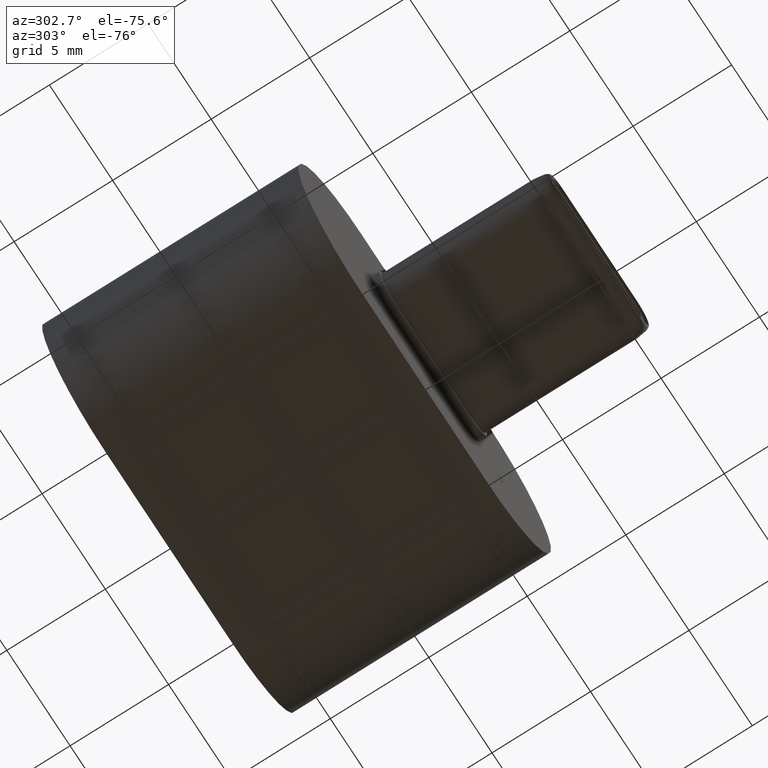
[diagram: clean part render]
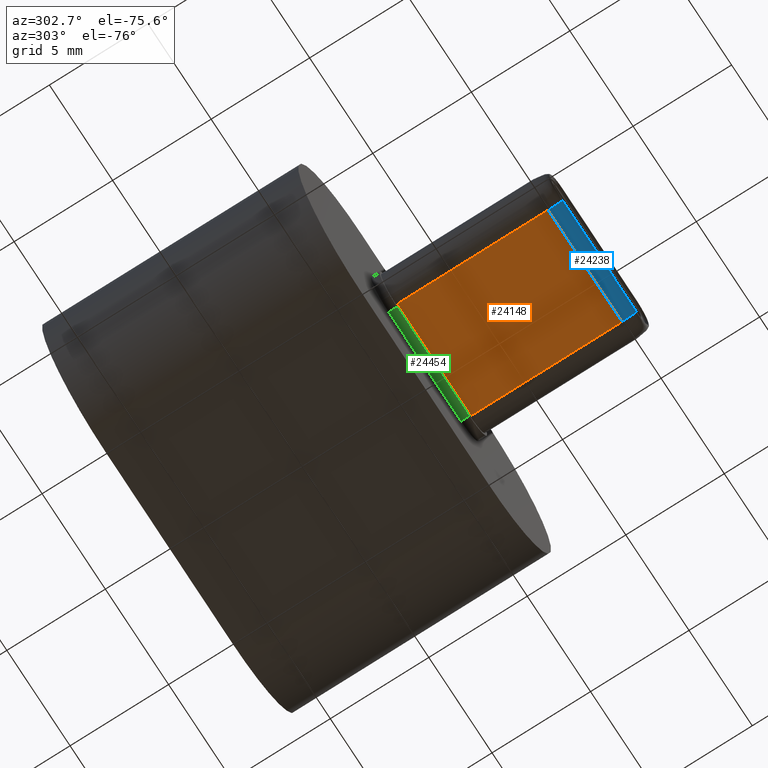
[diagram: same view with three faces highlighted in distinct colors, each labeled with its STEP entity id]
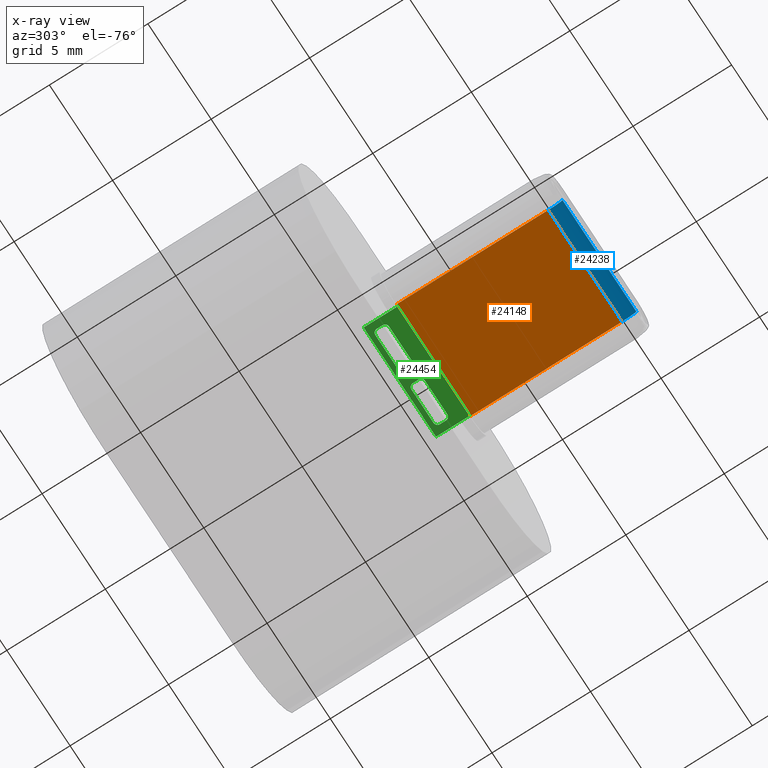
[diagram: x-ray of the same camera — body ghosted, the three highlighted faces saturated]
A machine part, auxiliary view with three faces highlighted in distinct colors.
The next image is the same camera in x-ray (body ghosted, the three faces saturated) — at least one of them is partly hidden behind the body in this view.
Their STEP definitions:

[orange] entity #24148 — the highlighted planar face has unit normal (0, 0, -1).
#424=B_SPLINE_CURVE_WITH_KNOTS('',3,(#38372,#38373,#38374,#38375,#38376,
#38377),.UNSPECIFIED.,.F.,.F.,(4,2,4),(-0.0257628086124828,-0.0128848740764553,
-2.65713586727795E-5),.UNSPECIFIED.);
#425=B_SPLINE_CURVE_WITH_KNOTS('',3,(#38379,#38380,#38381,#38382,#38383,
#38384),.UNSPECIFIED.,.F.,.F.,(4,2,4),(0.,0.5,1.),.UNSPECIFIED.);
#426=B_SPLINE_CURVE_WITH_KNOTS('',3,(#38389,#38390,#38391,#38392,#38393,
#38394),.UNSPECIFIED.,.F.,.F.,(4,2,4),(-0.025694780338251,-0.012799972147845,
0.),.UNSPECIFIED.);
#2566=FACE_OUTER_BOUND('',#4000,.T.);
#4000=EDGE_LOOP('',(#19248,#19249,#19250,#19251,#19252,#19253,#19254,#19255));
#6207=LINE('',#38251,#8772);
#6214=LINE('',#38305,#8779);
#6219=LINE('',#38386,#8784);
#6220=LINE('',#38387,#8785);
#6221=LINE('',#38395,#8786);
#8772=VECTOR('',#29345,1000.);
#8779=VECTOR('',#29354,1000.);
#8784=VECTOR('',#29375,10.);
#8785=VECTOR('',#29376,10.);
#8786=VECTOR('',#29377,10.);
#11096=VERTEX_POINT('',#38239);
#11097=VERTEX_POINT('',#38250);
#11102=VERTEX_POINT('',#38297);
#11103=VERTEX_POINT('',#38304);
#11111=VERTEX_POINT('',#38371);
#11112=VERTEX_POINT('',#38378);
#11113=VERTEX_POINT('',#38385);
#11114=VERTEX_POINT('',#38388);
#13969=EDGE_CURVE('',#11097,#11096,#6207,.T.);
#13980=EDGE_CURVE('',#11102,#11103,#6214,.T.);
#13992=EDGE_CURVE('',#11111,#11097,#424,.T.);
#13993=EDGE_CURVE('',#11096,#11112,#425,.T.);
#13994=EDGE_CURVE('',#11112,#11113,#6219,.T.);
#13995=EDGE_CURVE('',#11113,#11103,#6220,.T.);
#13996=EDGE_CURVE('',#11102,#11114,#426,.T.);
#13997=EDGE_CURVE('',#11114,#11111,#6221,.T.);
#19248=ORIENTED_EDGE('',*,*,#13992,.T.);
#19249=ORIENTED_EDGE('',*,*,#13969,.T.);
#19250=ORIENTED_EDGE('',*,*,#13993,.T.);
#19251=ORIENTED_EDGE('',*,*,#13994,.T.);
#19252=ORIENTED_EDGE('',*,*,#13995,.T.);
#19253=ORIENTED_EDGE('',*,*,#13980,.F.);
#19254=ORIENTED_EDGE('',*,*,#13996,.T.);
#19255=ORIENTED_EDGE('',*,*,#13997,.T.);
#22990=PLANE('',#25630);
#24148=ADVANCED_FACE('',(#2566),#22990,.T.);
#25630=AXIS2_PLACEMENT_3D('',#38370,#29373,#29374);
#29345=DIRECTION('',(0.,0.,1.));
#29354=DIRECTION('',(0.,0.,1.));
#29373=DIRECTION('center_axis',(0.,-1.,0.));
#29374=DIRECTION('ref_axis',(0.,0.,-1.));
#29375=DIRECTION('',(-1.,0.,0.));
#29376=DIRECTION('',(-0.999999999844584,0.,-1.7630420503422E-5));
#29377=DIRECTION('',(1.,2.76126395988818E-15,0.));
#38239=CARTESIAN_POINT('',(2.925000000197,-1.2,-0.729956581954962));
#38250=CARTESIAN_POINT('',(2.925000000197,-1.19999999999989,-8.4092300892786));
#38251=CARTESIAN_POINT('',(2.925000000197,-1.2,-7.7));
#38297=CARTESIAN_POINT('',(-2.924999999884,-1.20000000000012,-8.40928024325465));
#38304=CARTESIAN_POINT('',(-2.924999999884,-1.20000000000004,-0.729982964663591));
#38305=CARTESIAN_POINT('',(-2.924999999884,-1.20000000000004,-7.7));
#38370=CARTESIAN_POINT('Origin',(-2.924999999884,-1.2,-7.7));
#38371=CARTESIAN_POINT('',(2.66999999999558,-1.19999999996928,-8.37268976699491));
#38372=CARTESIAN_POINT('Ctrl Pts',(2.66999999999558,-1.2,-8.37268976711375));
#38373=CARTESIAN_POINT('Ctrl Pts',(2.7128638365433,-1.2,-8.37268976711375));
#38374=CARTESIAN_POINT('Ctrl Pts',(2.75650874846746,-1.2000000008539,-8.37565628341577));
#38375=CARTESIAN_POINT('Ctrl Pts',(2.84137683094925,-1.2000000008539,-8.38745393399239));
#38376=CARTESIAN_POINT('Ctrl Pts',(2.8840768170524,-1.2,-8.39647987071203));
#38377=CARTESIAN_POINT('Ctrl Pts',(2.92500000019677,-1.2,-8.40923008927932));
#38378=CARTESIAN_POINT('',(2.92000000000163,-1.2,-0.729982876511488));
#38379=CARTESIAN_POINT('Ctrl Pts',(2.925000000197,-1.19999999985342,-0.729956581954964));
#38380=CARTESIAN_POINT('Ctrl Pts',(2.92416666683109,-1.20000000000017,-0.729969758617265));
#38381=CARTESIAN_POINT('Ctrl Pts',(2.92333333346525,-1.19999999999317,-0.729976339602394));
#38382=CARTESIAN_POINT('Ctrl Pts',(2.92166666673371,-1.20000000000227,-0.729982883879319));
#38383=CARTESIAN_POINT('Ctrl Pts',(2.9208333333675,-1.2,-0.729982876514928));
#38384=CARTESIAN_POINT('Ctrl Pts',(2.92000000000163,-1.2,-0.729982876511488));
#38385=CARTESIAN_POINT('',(-2.92,-1.2,-0.729982876511488));
#38386=CARTESIAN_POINT('',(2.92000000000163,-1.2,-0.729982876511488));
#38387=CARTESIAN_POINT('',(-2.92,-1.2,-0.729982876511488));
#38388=CARTESIAN_POINT('',(-2.6700000000466,-1.19999999996928,-8.37268976700303));
#38389=CARTESIAN_POINT('Ctrl Pts',(-2.92499999988392,-1.2,-8.40928024325491));
#38390=CARTESIAN_POINT('Ctrl Pts',(-2.88389630976275,-1.2,-8.3964721218059));
#38391=CARTESIAN_POINT('Ctrl Pts',(-2.84098857260531,-1.20000000068591,
-8.38741178097191));
#38392=CARTESIAN_POINT('Ctrl Pts',(-2.75612531985664,-1.20000000068591,
-8.37564699686892));
#38393=CARTESIAN_POINT('Ctrl Pts',(-2.71266657387275,-1.2,-8.37268976712006));
#38394=CARTESIAN_POINT('Ctrl Pts',(-2.6700000000466,-1.2,-8.37268976711799));
#38395=CARTESIAN_POINT('',(-2.924999999884,-1.2,-8.37268976711799));

[blue] entity #24238 — the highlighted face is a freeform B-spline surface patch.
#35=(
BOUNDED_SURFACE()
B_SPLINE_SURFACE(2,1,((#39300,#39301),(#39302,#39303),(#39304,#39305)),
 .UNSPECIFIED.,.F.,.F.,.F.)
B_SPLINE_SURFACE_WITH_KNOTS((3,3),(2,2),(0.,1.),(0.,0.840960000000235),
 .UNSPECIFIED.)
GEOMETRIC_REPRESENTATION_ITEM()
RATIONAL_B_SPLINE_SURFACE(((1.,1.),(0.709524247320133,0.709524247320133),
(1.,1.)))
REPRESENTATION_ITEM('')
SURFACE()
);
#96=ELLIPSE('',#25754,0.733457360308849,0.226548918115813);
#98=ELLIPSE('',#25756,0.733457360308909,0.226548918115827);
#2656=FACE_OUTER_BOUND('',#4099,.T.);
#4099=EDGE_LOOP('',(#19720,#19721,#19722,#19723));
#6219=LINE('',#38386,#8784);
#6390=LINE('',#38910,#8955);
#8784=VECTOR('',#29375,10.);
#8955=VECTOR('',#29776,10.);
#11112=VERTEX_POINT('',#38378);
#11113=VERTEX_POINT('',#38385);
#11118=VERTEX_POINT('',#38461);
#11245=VERTEX_POINT('',#38889);
#13994=EDGE_CURVE('',#11112,#11113,#6219,.T.);
#14209=EDGE_CURVE('',#11118,#11245,#6390,.T.);
#14218=EDGE_CURVE('',#11112,#11118,#96,.T.);
#14220=EDGE_CURVE('',#11113,#11245,#98,.T.);
#19720=ORIENTED_EDGE('',*,*,#14218,.T.);
#19721=ORIENTED_EDGE('',*,*,#14209,.T.);
#19722=ORIENTED_EDGE('',*,*,#14220,.F.);
#19723=ORIENTED_EDGE('',*,*,#13994,.F.);
#24238=ADVANCED_FACE('',(#2656),#35,.T.);
#25754=AXIS2_PLACEMENT_3D('',#39214,#29794,#29795);
#25756=AXIS2_PLACEMENT_3D('',#39306,#29798,#29799);
#29375=DIRECTION('',(-1.,0.,0.));
#29776=DIRECTION('',(-1.,-5.22793376321632E-16,0.));
#29794=DIRECTION('center_axis',(-1.,3.17638405254118E-15,2.82317738683713E-15));
#29795=DIRECTION('ref_axis',(-2.81803948424609E-15,0.00161637085120252,
-0.999998693671782));
#29798=DIRECTION('center_axis',(-1.,5.95694494814935E-15,-1.83608774459272E-15));
#29799=DIRECTION('ref_axis',(1.84571397823603E-15,0.00161637085122537,-0.999998693671782));
#38378=CARTESIAN_POINT('',(2.92000000000163,-1.2,-0.729982876511488));
#38385=CARTESIAN_POINT('',(-2.92,-1.2,-0.729982876511488));
#38386=CARTESIAN_POINT('',(2.92000000000163,-1.2,-0.729982876511488));
#38461=CARTESIAN_POINT('',(2.92000000000163,-0.975000000001394,0.));
#38889=CARTESIAN_POINT('',(-2.92,-0.975000000001397,0.));
#38910=CARTESIAN_POINT('',(2.92000000000163,-0.975000000001394,0.));
#39214=CARTESIAN_POINT('Origin',(2.92000000000163,-0.97344827586304,-0.733454852143906));
#39300=CARTESIAN_POINT('Ctrl Pts',(2.92000000000163,-1.2,-0.729982876511488));
#39301=CARTESIAN_POINT('Ctrl Pts',(-5.48960000000072,-1.2,-0.729982876511488));
#39302=CARTESIAN_POINT('Ctrl Pts',(2.92000000000163,-1.2,-0.001541132040909));
#39303=CARTESIAN_POINT('Ctrl Pts',(-5.48960000000072,-1.2,-0.001541132040909));
#39304=CARTESIAN_POINT('Ctrl Pts',(2.92000000000163,-0.975000000001394,
1.0842021724855E-16));
#39305=CARTESIAN_POINT('Ctrl Pts',(-5.48960000000072,-0.975000000001394,
1.0842021724855E-16));
#39306=CARTESIAN_POINT('Origin',(-2.92,-0.973448275863026,-0.733454852143966));

[green] entity #24454 — the highlighted planar face has unit normal (-0, 0, -1).
#1495=FACE_BOUND('',#4317,.T.);
#1496=FACE_BOUND('',#4318,.T.);
#1655=CIRCLE('',#25983,0.199999999999999);
#1657=CIRCLE('',#25987,0.199999999999999);
#1659=CIRCLE('',#25991,0.199999999999998);
#1661=CIRCLE('',#25995,0.199999999999999);
#1663=CIRCLE('',#26001,0.199999999999999);
#1665=CIRCLE('',#26005,0.199999999999999);
#1667=CIRCLE('',#26009,0.199999999999999);
#1669=CIRCLE('',#26013,0.199999999999998);
#2872=FACE_OUTER_BOUND('',#4316,.T.);
#4316=EDGE_LOOP('',(#20654,#20655,#20656,#20657));
#4317=EDGE_LOOP('',(#20658,#20659,#20660,#20661,#20662,#20663,#20664,#20665));
#4318=EDGE_LOOP('',(#20666,#20667,#20668,#20669,#20670,#20671,#20672,#20673));
#6691=LINE('',#40074,#9256);
#6695=LINE('',#40086,#9260);
#6699=LINE('',#40098,#9264);
#6703=LINE('',#40109,#9268);
#6705=LINE('',#40115,#9270);
#6710=LINE('',#40129,#9275);
#6714=LINE('',#40141,#9279);
#6718=LINE('',#40153,#9283);
#6753=LINE('',#40272,#9318);
#6754=LINE('',#40275,#9319);
#6755=LINE('',#40277,#9320);
#6756=LINE('',#40278,#9321);
#9256=VECTOR('',#30557,10.);
#9260=VECTOR('',#30569,10.);
#9264=VECTOR('',#30581,10.);
#9268=VECTOR('',#30593,10.);
#9270=VECTOR('',#30599,10.);
#9275=VECTOR('',#30612,10.);
#9279=VECTOR('',#30624,10.);
#9283=VECTOR('',#30636,10.);
#9318=VECTOR('',#30761,10.);
#9319=VECTOR('',#30764,10.);
#9320=VECTOR('',#30765,10.);
#9321=VECTOR('',#30766,10.);
#11468=VERTEX_POINT('',#40064);
#11469=VERTEX_POINT('',#40065);
#11472=VERTEX_POINT('',#40073);
#11474=VERTEX_POINT('',#40079);
#11476=VERTEX_POINT('',#40085);
#11478=VERTEX_POINT('',#40091);
#11480=VERTEX_POINT('',#40097);
#11482=VERTEX_POINT('',#40103);
#11484=VERTEX_POINT('',#40113);
#11485=VERTEX_POINT('',#40114);
#11488=VERTEX_POINT('',#40122);
#11490=VERTEX_POINT('',#40128);
#11492=VERTEX_POINT('',#40134);
#11494=VERTEX_POINT('',#40140);
#11496=VERTEX_POINT('',#40146);
#11498=VERTEX_POINT('',#40152);
#11536=VERTEX_POINT('',#40268);
#11537=VERTEX_POINT('',#40270);
#11538=VERTEX_POINT('',#40274);
#11539=VERTEX_POINT('',#40276);
#14566=EDGE_CURVE('',#11468,#11469,#1655,.T.);
#14570=EDGE_CURVE('',#11472,#11468,#6691,.T.);
#14573=EDGE_CURVE('',#11474,#11472,#1657,.T.);
#14576=EDGE_CURVE('',#11476,#11474,#6695,.T.);
#14579=EDGE_CURVE('',#11478,#11476,#1659,.T.);
#14582=EDGE_CURVE('',#11480,#11478,#6699,.T.);
#14585=EDGE_CURVE('',#11482,#11480,#1661,.T.);
#14588=EDGE_CURVE('',#11469,#11482,#6703,.T.);
#14590=EDGE_CURVE('',#11484,#11485,#6705,.T.);
#14594=EDGE_CURVE('',#11488,#11484,#1663,.T.);
#14597=EDGE_CURVE('',#11490,#11488,#6710,.T.);
#14600=EDGE_CURVE('',#11492,#11490,#1665,.T.);
#14603=EDGE_CURVE('',#11494,#11492,#6714,.T.);
#14606=EDGE_CURVE('',#11496,#11494,#1667,.T.);
#14609=EDGE_CURVE('',#11498,#11496,#6718,.T.);
#14612=EDGE_CURVE('',#11485,#11498,#1669,.T.);
#14668=EDGE_CURVE('',#11536,#11537,#6753,.T.);
#14669=EDGE_CURVE('',#11538,#11536,#6754,.T.);
#14670=EDGE_CURVE('',#11539,#11537,#6755,.T.);
#14671=EDGE_CURVE('',#11538,#11539,#6756,.T.);
#20654=ORIENTED_EDGE('',*,*,#14669,.T.);
#20655=ORIENTED_EDGE('',*,*,#14668,.T.);
#20656=ORIENTED_EDGE('',*,*,#14670,.F.);
#20657=ORIENTED_EDGE('',*,*,#14671,.F.);
#20658=ORIENTED_EDGE('',*,*,#14566,.T.);
#20659=ORIENTED_EDGE('',*,*,#14588,.T.);
#20660=ORIENTED_EDGE('',*,*,#14585,.T.);
#20661=ORIENTED_EDGE('',*,*,#14582,.T.);
#20662=ORIENTED_EDGE('',*,*,#14579,.T.);
#20663=ORIENTED_EDGE('',*,*,#14576,.T.);
#20664=ORIENTED_EDGE('',*,*,#14573,.T.);
#20665=ORIENTED_EDGE('',*,*,#14570,.T.);
#20666=ORIENTED_EDGE('',*,*,#14590,.T.);
#20667=ORIENTED_EDGE('',*,*,#14612,.T.);
#20668=ORIENTED_EDGE('',*,*,#14609,.T.);
#20669=ORIENTED_EDGE('',*,*,#14606,.T.);
#20670=ORIENTED_EDGE('',*,*,#14603,.T.);
#20671=ORIENTED_EDGE('',*,*,#14600,.T.);
#20672=ORIENTED_EDGE('',*,*,#14597,.T.);
#20673=ORIENTED_EDGE('',*,*,#14594,.T.);
#23219=PLANE('',#26057);
#24454=ADVANCED_FACE('',(#2872,#1495,#1496),#23219,.T.);
#25983=AXIS2_PLACEMENT_3D('',#40066,#30549,#30550);
#25987=AXIS2_PLACEMENT_3D('',#40080,#30562,#30563);
#25991=AXIS2_PLACEMENT_3D('',#40092,#30574,#30575);
#25995=AXIS2_PLACEMENT_3D('',#40104,#30586,#30587);
#26001=AXIS2_PLACEMENT_3D('',#40123,#30605,#30606);
#26005=AXIS2_PLACEMENT_3D('',#40135,#30617,#30618);
#26009=AXIS2_PLACEMENT_3D('',#40147,#30629,#30630);
#26013=AXIS2_PLACEMENT_3D('',#40158,#30641,#30642);
#26057=AXIS2_PLACEMENT_3D('',#40273,#30762,#30763);
#30549=DIRECTION('center_axis',(4.0277369580918E-14,1.,0.));
#30550=DIRECTION('ref_axis',(1.04083408558609E-15,-4.19220591375678E-29,
1.));
#30557=DIRECTION('',(0.,0.,1.));
#30562=DIRECTION('center_axis',(4.0277369580918E-14,1.,0.));
#30563=DIRECTION('ref_axis',(-1.,4.0277369580918E-14,5.5511151231258E-15));
#30569=DIRECTION('',(-1.,4.0277369580918E-14,0.));
#30574=DIRECTION('center_axis',(4.0277369580918E-14,1.,0.));
#30575=DIRECTION('ref_axis',(-6.9388939039073E-15,2.79480394250453E-28,
-1.));
#30581=DIRECTION('',(0.,0.,-1.));
#30586=DIRECTION('center_axis',(4.0277369580918E-14,1.,0.));
#30587=DIRECTION('ref_axis',(1.,-4.0277369580918E-14,0.));
#30593=DIRECTION('',(1.,-4.0277369580918E-14,0.));
#30599=DIRECTION('',(-1.,4.0277369580918E-14,0.));
#30605=DIRECTION('center_axis',(4.0277369580918E-14,1.,0.));
#30606=DIRECTION('ref_axis',(-3.81639164714899E-15,1.53714216837748E-28,
-1.));
#30612=DIRECTION('',(0.,0.,-1.));
#30617=DIRECTION('center_axis',(4.0277369580918E-14,1.,0.));
#30618=DIRECTION('ref_axis',(1.,-4.0277369580918E-14,-5.5511151231258E-15));
#30624=DIRECTION('',(1.,-4.0277369580918E-14,0.));
#30629=DIRECTION('center_axis',(4.0277369580918E-14,1.,0.));
#30630=DIRECTION('ref_axis',(4.16333634234436E-15,-1.67688236550271E-28,
1.));
#30636=DIRECTION('',(0.,0.,1.));
#30641=DIRECTION('center_axis',(4.0277369580918E-14,1.,0.));
#30642=DIRECTION('ref_axis',(-1.,4.0277369580918E-14,5.55111512312584E-15));
#30761=DIRECTION('',(0.,0.,1.));
#30762=DIRECTION('center_axis',(-4.0277369580918E-14,-1.,0.));
#30763=DIRECTION('ref_axis',(1.,-4.0277369580918E-14,0.));
#30764=DIRECTION('',(1.,-4.0277369580918E-14,0.));
#30765=DIRECTION('',(1.,-4.0277369580918E-14,0.));
#30766=DIRECTION('',(0.,0.,1.));
#40064=CARTESIAN_POINT('',(0.349999944120592,-1.32920160115953,-9.39999979436397));
#40065=CARTESIAN_POINT('',(0.549999944120592,-1.32920160115954,-9.19999979436398));
#40066=CARTESIAN_POINT('Origin',(0.549999944120591,-1.32920160115954,-9.39999979436397));
#40073=CARTESIAN_POINT('',(0.349999944120592,-1.32920160115953,-9.69999979436398));
#40074=CARTESIAN_POINT('',(0.349999944120592,-1.32920160115953,-9.86999989718199));
#40079=CARTESIAN_POINT('',(0.549999944120592,-1.32920160115954,-9.89999979436397));
#40080=CARTESIAN_POINT('Origin',(0.549999944120591,-1.32920160115954,-9.69999979436398));
#40085=CARTESIAN_POINT('',(2.29999994412059,-1.32920160115961,-9.89999979436397));
#40086=CARTESIAN_POINT('',(-0.275367542106079,-1.32920160115951,-9.89999979436398));
#40091=CARTESIAN_POINT('',(2.49999994412059,-1.32920160115962,-9.69999979436398));
#40092=CARTESIAN_POINT('Origin',(2.29999994412059,-1.32920160115962,-9.69999979436398));
#40097=CARTESIAN_POINT('',(2.49999994412059,-1.32920160115962,-9.39999979436397));
#40098=CARTESIAN_POINT('',(2.49999994412059,-1.32920160115962,-9.71999989718199));
#40103=CARTESIAN_POINT('',(2.29999994412059,-1.32920160115961,-9.19999979436398));
#40104=CARTESIAN_POINT('Origin',(2.29999994412059,-1.32920160115962,-9.39999979436397));
#40109=CARTESIAN_POINT('',(-1.15036754210608,-1.32920160115947,-9.19999979436398));
#40113=CARTESIAN_POINT('',(-0.549999944120699,-1.32920160115949,-9.89999979436397));
#40114=CARTESIAN_POINT('',(-2.2999999441207,-1.32920160115942,-9.89999979436397));
#40115=CARTESIAN_POINT('',(-1.70036748622672,-1.32920160115945,-9.89999979436398));
#40122=CARTESIAN_POINT('',(-0.349999944120699,-1.3292016011595,-9.69999979436398));
#40123=CARTESIAN_POINT('Origin',(-0.549999944120698,-1.3292016011595,-9.69999979436398));
#40128=CARTESIAN_POINT('',(-0.349999944120699,-1.3292016011595,-9.39999979436397));
#40129=CARTESIAN_POINT('',(-0.349999944120699,-1.3292016011595,-9.71999989718199));
#40134=CARTESIAN_POINT('',(-0.549999944120699,-1.32920160115949,-9.19999979436398));
#40135=CARTESIAN_POINT('Origin',(-0.549999944120699,-1.3292016011595,-9.39999979436397));
#40140=CARTESIAN_POINT('',(-2.2999999441207,-1.32920160115942,-9.19999979436398));
#40141=CARTESIAN_POINT('',(-2.57536748622673,-1.32920160115941,-9.19999979436398));
#40146=CARTESIAN_POINT('',(-2.4999999441207,-1.32920160115942,-9.39999979436397));
#40147=CARTESIAN_POINT('Origin',(-2.2999999441207,-1.32920160115942,-9.39999979436397));
#40152=CARTESIAN_POINT('',(-2.4999999441207,-1.32920160115942,-9.69999979436398));
#40153=CARTESIAN_POINT('',(-2.4999999441207,-1.32920160115942,-9.86999989718199));
#40158=CARTESIAN_POINT('Origin',(-2.2999999441207,-1.32920160115942,-9.69999979436398));
#40268=CARTESIAN_POINT('',(2.87233124650675,-1.32920160116015,-10.14));
#40270=CARTESIAN_POINT('',(2.87233124650675,-1.32920160116015,-8.44));
#40272=CARTESIAN_POINT('',(2.87233124650675,-1.32920160116015,-10.04));
#40273=CARTESIAN_POINT('Origin',(-2.85073502833275,-1.3292016011594,-10.04));
#40274=CARTESIAN_POINT('',(-2.85073502833275,-1.3292016011594,-10.14));
#40275=CARTESIAN_POINT('',(-1.41996845962052,-1.32920160115946,-10.14));
#40276=CARTESIAN_POINT('',(-2.85073502833275,-1.3292016011594,-8.44));
#40277=CARTESIAN_POINT('',(-1.41996845962052,-1.32920160115946,-8.44));
#40278=CARTESIAN_POINT('',(-2.85073502833275,-1.3292016011594,-10.04));